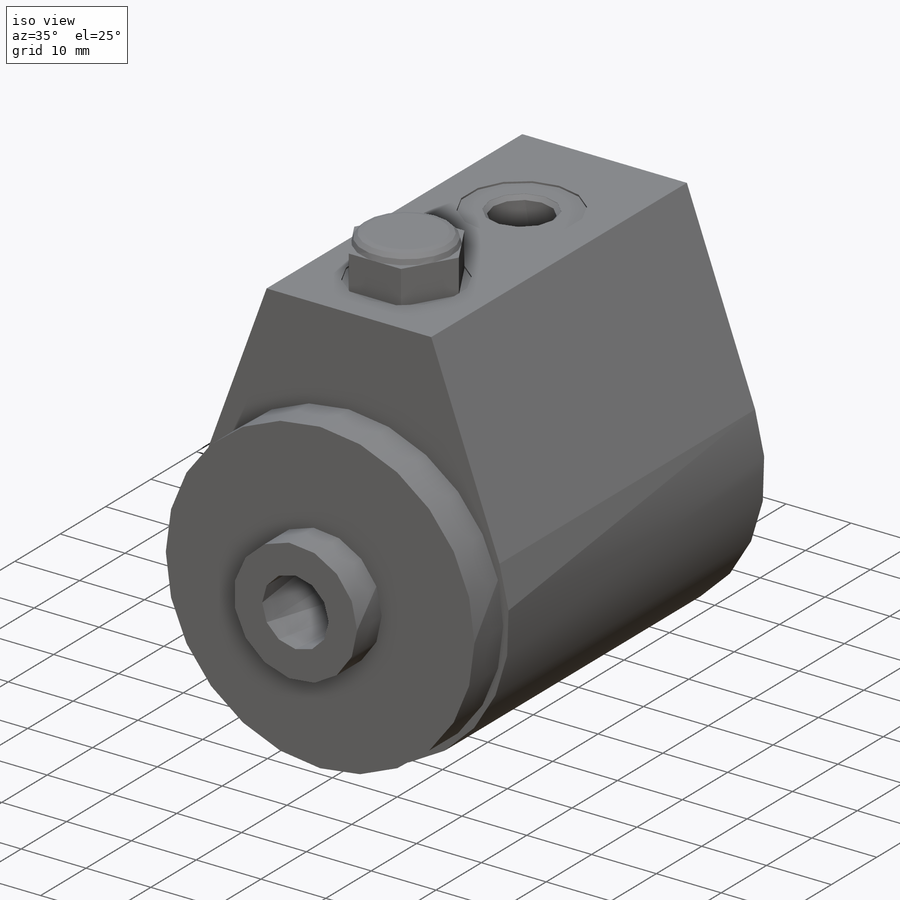
[diagram: iso view]
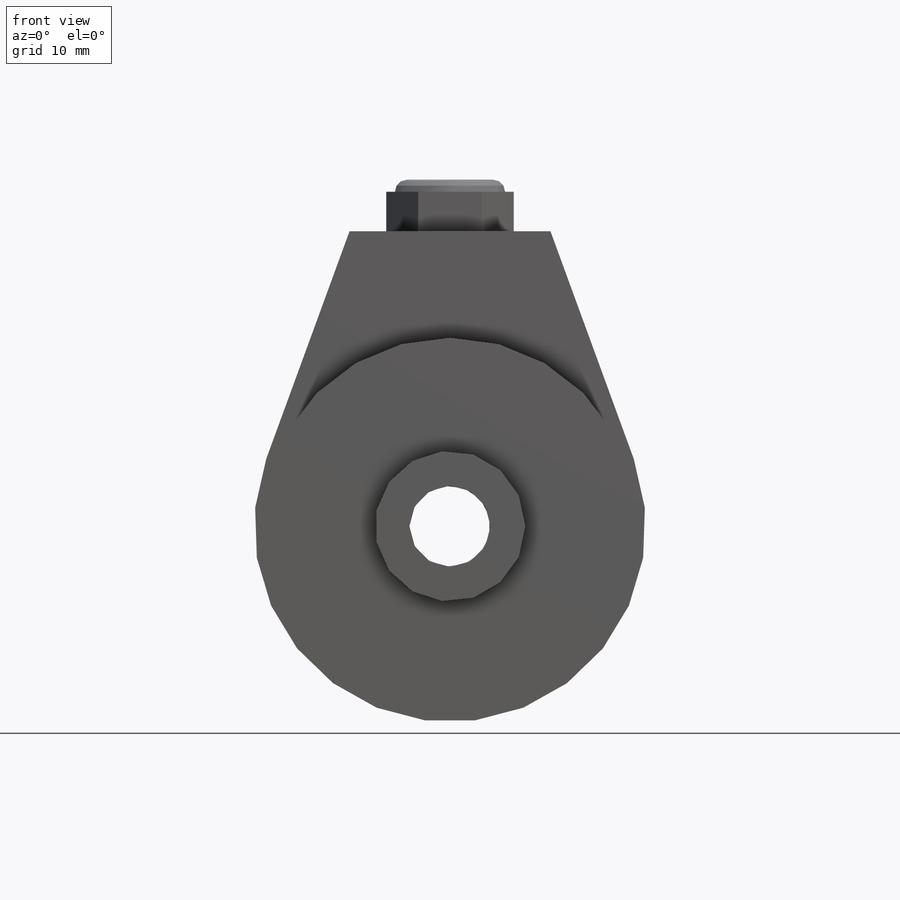
[diagram: front view]
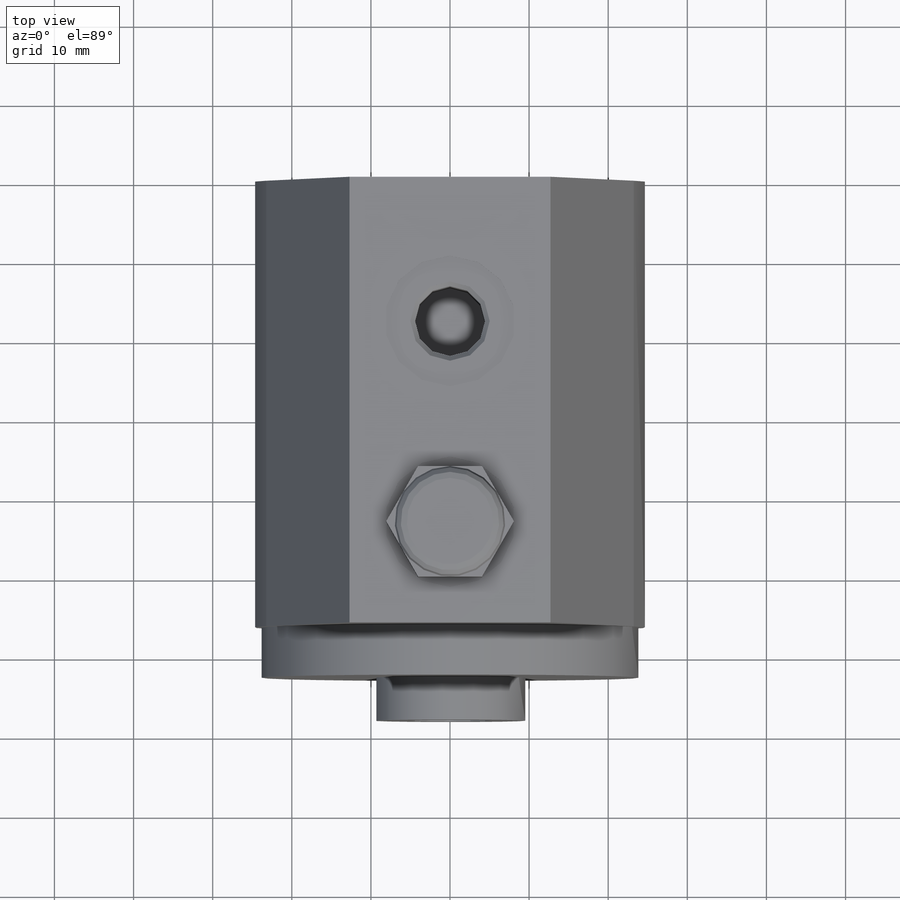
[diagram: top view]
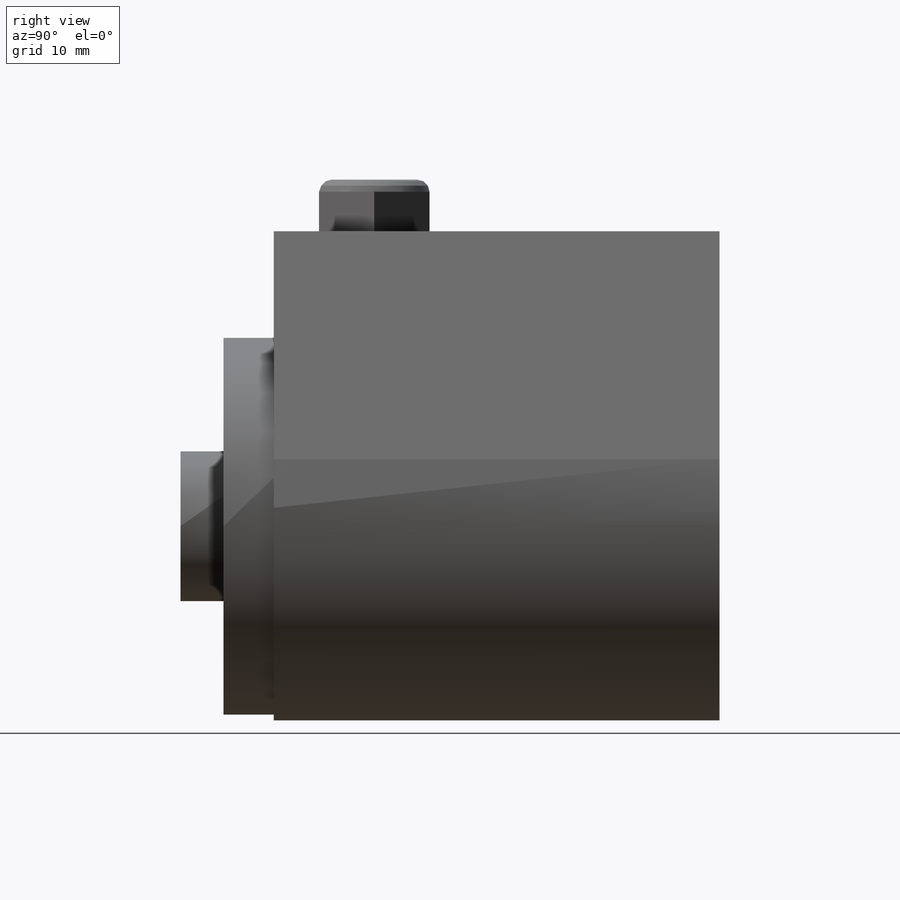
[diagram: right view]
SOLIDWORKS PART (.sldprt)
format: sldprt  version: not decoded by parser v0  size: 316,416 bytes
history: native  units: mm
features: sketch x12, plane x3, hole x3, extrude x2, revolve x2, cut_revolve x2, material x1, pattern_circular x1, pattern_linear x1 (+11 scaffold rows collapsed)
feature tree (38):
  scaffold x11  (default folders/planes/origin — collapsed)
  material  "Alloy Steel"
  plane  "Plane1"  Offset=56.3372mm
  sketch  "Sketch1"  dims[D1=49.4792mm D2=37.2872mm D3=12.7mm]
  extrude  "Extrude1"  Depth=56.3372mm
  hole  "Hole2"  Diameter=23.876mm Depth=6.35mm
  sketch  "Sketch5"
  sketch  "Sketch4"  dims[Diameter=23.876mm Depth=6.35mm]
  plane  "Plane2"
  sketch  "Sketch7"  dims[D1=19.0246mm D2=47.625mm D3=6.35mm D4=68.1228mm]
  revolve  "Revolve2"  Angle=360deg
  sketch  "Sketch6"  dims[D1=62.7126mm D2=19.0246mm]
  revolve  "Revolve1"  Angle=360deg
  plane  "Plane4"  Offset=38.1mm
  sketch  "Sketch9"  dims[c1.D1=0.254mm c1.D2=20.828mm c1.D3=8.8392mm c1.D4=16.51mm c1.D5=~2.609729mm c2.D5=12.0deg c2.D6=10.033mm c2.D7=~0.938906mm c3.D7=45.0deg c3.D8=2.5527mm c3.D2=0.0254mm c3.D5=15.24mm]
  cut_revolve  "Cut-Revolve1"  Angle=360deg
  hole  "Hole3"  Diameter=6.7818mm Depth=12.7mm
  sketch  "Sketch12"  dims[D1=18.0086mm]
  sketch  "Sketch11"  dims[Diameter=6.7818mm Depth=12.7mm]
  pattern_circular  "CirPattern1"  Count=2 Angle=360deg
  hole  "Hole5"  Diameter=10.2616mm Depth=62.7126mm
  sketch  "Sketch16"
  sketch  "Sketch15"  dims[Diameter=10.2616mm Depth=62.7126mm C-Drill Diameter=13.4874mm C-Drill Depth=47.752mm C-Drill Angle=118.0deg]
  pattern_linear  "LPattern1"  Count1=2 Count2=1 Spacing1=25.4mm Spacing2=2.54mm
  sketch  "Sketch17"  dims[D1=13.97mm]
  extrude  "Extrude2"  Depth=6.78mm
  sketch  "Sketch18"  dims[D1=1.524mm D2=3.0mm D3=3.0mm]
  cut_revolve  "Cut-Revolve2"  Angle=360deg
decode coverage: 21 of 23 modeling features carry decoded parameters
note: ~ marks probable driven/reference dimensions
note: suppression state not decoded; provenance and decode notes live in map.json
